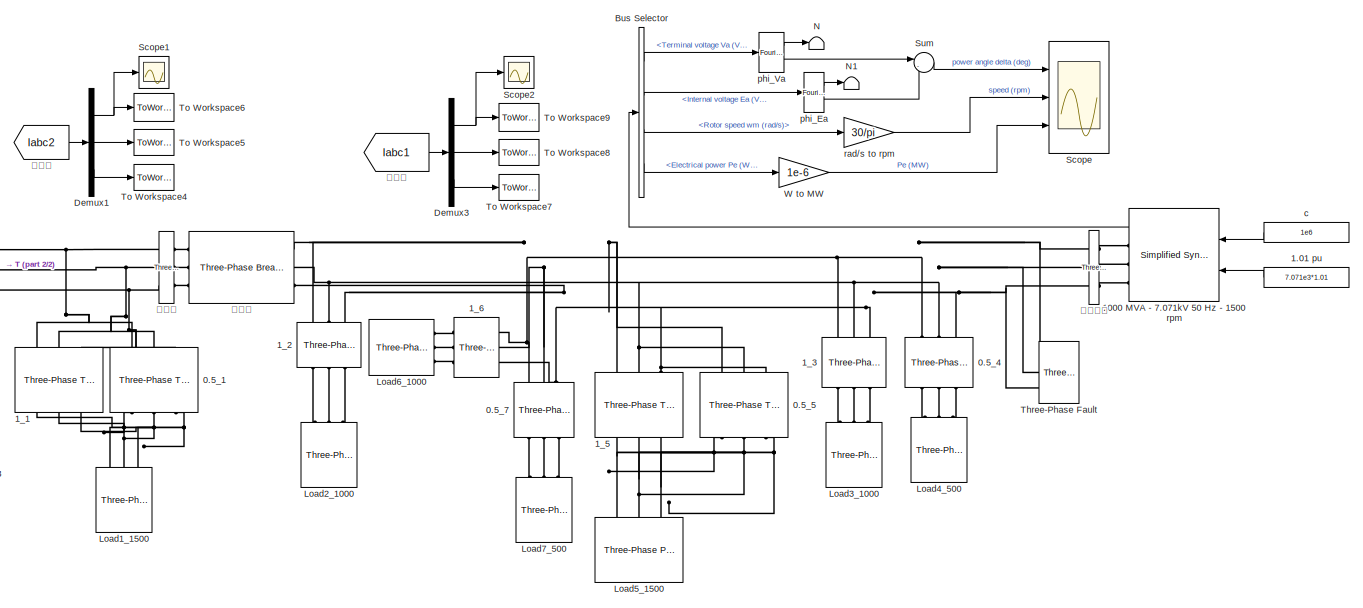
[diagram: root canvas - part 1/2, most of the canvas]
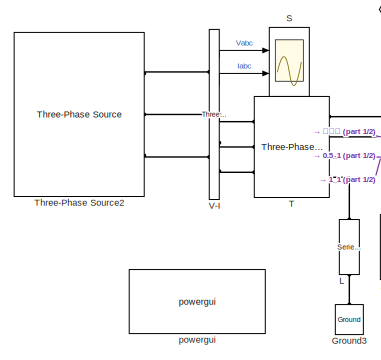
[diagram: root canvas - part 2/2, middle left region]
MODEL slx_4d53f380dfcf
KIND model
CONFIG AbsTol = auto
CONFIG EnableMultiTasking = on
CONFIG FixedStep = auto
CONFIG MaxStep = 1e-4
CONFIG MinStep = auto
CONFIG RelTol = 1e-3
CONFIG SampleTimeConstraint = Unconstrained
CONFIG Solver = ode3
CONFIG SolverName = ode3
CONFIG StartTime = 0.0
CONFIG StopTime = 7
BLOCK [Reference] 0.5_1  REF=powerlib/Elements/Three-Phase
Transformer
(Two Windings)
  Ports = [0, 0, 0, 0, 0, 3, 3]
  SourceBlock = powerlib/Elements/Three-Phase\nTransformer\n(Two Windings)
  SourceProductBaseCode = PS
  SourceProductName = Simscape Power Systems
  SourceType = Three-Phase Transformer (Two Windings)
BLOCK [Reference] 0.5_4  REF=powerlib/Elements/Three-Phase
Transformer
(Two Windings)
  Ports = [0, 0, 0, 0, 0, 3, 3]
  SourceBlock = powerlib/Elements/Three-Phase\nTransformer\n(Two Windings)
  SourceProductBaseCode = PS
  SourceProductName = Simscape Power Systems
  SourceType = Three-Phase Transformer (Two Windings)
BLOCK [Reference] 0.5_5  REF=powerlib/Elements/Three-Phase
Transformer
(Two Windings)
  Ports = [0, 0, 0, 0, 0, 3, 3]
  SourceBlock = powerlib/Elements/Three-Phase\nTransformer\n(Two Windings)
  SourceProductBaseCode = PS
  SourceProductName = Simscape Power Systems
  SourceType = Three-Phase Transformer (Two Windings)
BLOCK [Reference] 0.5_7  REF=powerlib/Elements/Three-Phase
Transformer
(Two Windings)
  Ports = [0, 0, 0, 0, 0, 3, 3]
  SourceBlock = powerlib/Elements/Three-Phase\nTransformer\n(Two Windings)
  SourceProductBaseCode = PS
  SourceProductName = Simscape Power Systems
  SourceType = Three-Phase Transformer (Two Windings)
BLOCK [Constant] 1.01 pu
  Value = 7.071e3*1.01
BLOCK [Reference] 1000 MVA - 7.071kV 50 Hz - 1500 rpm  REF=powerlib/Machines/Simplified Synchronous
Machine SI Units
  AttributesFormatString = \n
  Ports = [2, 1, 0, 0, 0, 0, 3]
  SourceBlock = powerlib/Machines/Simplified Synchronous\nMachine SI Units
  SourceProductBaseCode = PS
  SourceProductName = Simscape Power Systems
  SourceType = Simplified Synchronous Machine
BLOCK [Reference] 1_1  REF=powerlib/Elements/Three-Phase
Transformer
(Two Windings)
  Ports = [0, 0, 0, 0, 0, 3, 3]
  SourceBlock = powerlib/Elements/Three-Phase\nTransformer\n(Two Windings)
  SourceProductBaseCode = PS
  SourceProductName = Simscape Power Systems
  SourceType = Three-Phase Transformer (Two Windings)
BLOCK [Reference] 1_2  REF=powerlib/Elements/Three-Phase
Transformer
(Two Windings)
  Ports = [0, 0, 0, 0, 0, 3, 3]
  SourceBlock = powerlib/Elements/Three-Phase\nTransformer\n(Two Windings)
  SourceProductBaseCode = PS
  SourceProductName = Simscape Power Systems
  SourceType = Three-Phase Transformer (Two Windings)
BLOCK [Reference] 1_3  REF=powerlib/Elements/Three-Phase
Transformer
(Two Windings)
  Ports = [0, 0, 0, 0, 0, 3, 3]
  SourceBlock = powerlib/Elements/Three-Phase\nTransformer\n(Two Windings)
  SourceProductBaseCode = PS
  SourceProductName = Simscape Power Systems
  SourceType = Three-Phase Transformer (Two Windings)
BLOCK [Reference] 1_5  REF=powerlib/Elements/Three-Phase
Transformer
(Two Windings)
  Ports = [0, 0, 0, 0, 0, 3, 3]
  SourceBlock = powerlib/Elements/Three-Phase\nTransformer\n(Two Windings)
  SourceProductBaseCode = PS
  SourceProductName = Simscape Power Systems
  SourceType = Three-Phase Transformer (Two Windings)
BLOCK [Reference] 1_6  REF=powerlib/Elements/Three-Phase
Transformer
(Two Windings)
  Ports = [0, 0, 0, 0, 0, 3, 3]
  SourceBlock = powerlib/Elements/Three-Phase\nTransformer\n(Two Windings)
  SourceProductBaseCode = PS
  SourceProductName = Simscape Power Systems
  SourceType = Three-Phase Transformer (Two Windings)
BLOCK [BusSelector] Bus Selector
  OutputAsBus = off
  OutputSignals = Terminal voltage Va (V),Internal voltage Ea (V),Rotor speed wm (rad/s),Electrical power Pe (W)
  Ports = [1, 4]
BLOCK [Demux] Demux1
  DisplayOption = bar
  Outputs = 3
  Ports = [1, 3]
BLOCK [Demux] Demux3
  DisplayOption = bar
  Outputs = 3
  Ports = [1, 3]
BLOCK [Reference] Ground3  REF=powerlib/Elements/Ground
  Ports = [0, 0, 0, 0, 0, 1]
  SourceBlock = powerlib/Elements/Ground
  SourceProductBaseCode = PS
  SourceProductName = Simscape Power Systems
  SourceType = Ground
BLOCK [Reference] L  REF=powerlib/Elements/Series RLC Branch
  Ports = [0, 0, 0, 0, 0, 1, 1]
  SourceBlock = powerlib/Elements/Series RLC Branch
  SourceProductBaseCode = PS
  SourceProductName = Simscape Power Systems
  SourceType = Series RLC Branch
BLOCK [Reference] Load1_1500  REF=powerlib/Elements/Three-Phase
Parallel RLC Load
  AttributesFormatString = \n
  Ports = [0, 0, 0, 0, 0, 3]
  SourceBlock = powerlib/Elements/Three-Phase\nParallel RLC Load
  SourceProductBaseCode = PS
  SourceProductName = Simscape Power Systems
  SourceType = Three-Phase Parallel RLC Load
BLOCK [Reference] Load2_1000  REF=powerlib/Elements/Three-Phase
Parallel RLC Load
  AttributesFormatString = \n
  Ports = [0, 0, 0, 0, 0, 3]
  SourceBlock = powerlib/Elements/Three-Phase\nParallel RLC Load
  SourceProductBaseCode = PS
  SourceProductName = Simscape Power Systems
  SourceType = Three-Phase Parallel RLC Load
BLOCK [Reference] Load3_1000  REF=powerlib/Elements/Three-Phase
Parallel RLC Load
  AttributesFormatString = \n
  Ports = [0, 0, 0, 0, 0, 3]
  SourceBlock = powerlib/Elements/Three-Phase\nParallel RLC Load
  SourceProductBaseCode = PS
  SourceProductName = Simscape Power Systems
  SourceType = Three-Phase Parallel RLC Load
BLOCK [Reference] Load4_500  REF=powerlib/Elements/Three-Phase
Parallel RLC Load
  AttributesFormatString = \n
  Ports = [0, 0, 0, 0, 0, 3]
  SourceBlock = powerlib/Elements/Three-Phase\nParallel RLC Load
  SourceProductBaseCode = PS
  SourceProductName = Simscape Power Systems
  SourceType = Three-Phase Parallel RLC Load
BLOCK [Reference] Load5_1500  REF=powerlib/Elements/Three-Phase
Parallel RLC Load
  AttributesFormatString = \n
  Ports = [0, 0, 0, 0, 0, 3]
  SourceBlock = powerlib/Elements/Three-Phase\nParallel RLC Load
  SourceProductBaseCode = PS
  SourceProductName = Simscape Power Systems
  SourceType = Three-Phase Parallel RLC Load
BLOCK [Reference] Load6_1000  REF=powerlib/Elements/Three-Phase
Parallel RLC Load
  AttributesFormatString = \n
  Ports = [0, 0, 0, 0, 0, 3]
  SourceBlock = powerlib/Elements/Three-Phase\nParallel RLC Load
  SourceProductBaseCode = PS
  SourceProductName = Simscape Power Systems
  SourceType = Three-Phase Parallel RLC Load
BLOCK [Reference] Load7_500  REF=powerlib/Elements/Three-Phase
Parallel RLC Load
  AttributesFormatString = \n
  Ports = [0, 0, 0, 0, 0, 3]
  SourceBlock = powerlib/Elements/Three-Phase\nParallel RLC Load
  SourceProductBaseCode = PS
  SourceProductName = Simscape Power Systems
  SourceType = Three-Phase Parallel RLC Load
BLOCK [Terminator] N
BLOCK [Terminator] N1
BLOCK [Scope] S
  NumInputPorts = 2
  Ports = [2]
  ScopeSpecificationString = Simulink.scopes.TimeScopeBlockCfg('CurrentConfiguration', extmgr.ConfigurationSet(extmgr.Configuration('Core','General UI',true),extmgr.Configuration('Core','Source UI',true),extmgr.Configuration('Sources','WiredSimulink',true,'DataLoggingVariableName','ScopeData1','DataLoggingSaveFormat','Array','DataLoggingDecimation','1','DataLoggingDecimateData',true),extmgr.Configuration('Visuals','Time Domai...<+2313ch>
BLOCK [Scope] Scope
  NumInputPorts = 3
  Ports = [3]
  ScopeSpecificationString = Simulink.scopes.TimeScopeBlockCfg('CurrentConfiguration', extmgr.ConfigurationSet(extmgr.Configuration('Core','General UI',true),extmgr.Configuration('Core','Source UI',true),extmgr.Configuration('Sources','WiredSimulink',true,'DataLogging',true,'DataLoggingVariableName','ScopeData2','DataLoggingSaveFormat','Structure','DataLoggingDecimation','1','DataLoggingDecimateData',true),extmgr.Configuratio...<+3058ch>
BLOCK [Scope] Scope1
  NumInputPorts = 1
  Ports = [1]
  ScopeSpecificationString = Simulink.scopes.TimeScopeBlockCfg('CurrentConfiguration', extmgr.ConfigurationSet(extmgr.Configuration('Core','General UI',true),extmgr.Configuration('Core','Source UI',true),extmgr.Configuration('Sources','WiredSimulink',true,'DataLoggingVariableName','ScopeData3'),extmgr.Configuration('Visuals','Time Domain',true,'SerializedDisplays',{struct('MinYLimReal','-1100.29967','MaxYLimReal','549.33179',...<+1387ch>
BLOCK [Scope] Scope2
  NumInputPorts = 1
  Ports = [1]
  ScopeSpecificationString = Simulink.scopes.TimeScopeBlockCfg('CurrentConfiguration', extmgr.ConfigurationSet(extmgr.Configuration('Core','General UI',true),extmgr.Configuration('Core','Source UI',true),extmgr.Configuration('Sources','WiredSimulink',true),extmgr.Configuration('Visuals','Time Domain',true,'SerializedDisplays',{struct('MinYLimReal','-478.10552','MaxYLimReal','708.22388','YLabelReal','','MinYLimMag',' 0.00000',...<+1342ch>
BLOCK [Sum] Sum
  IconShape = round
  Inputs = |-+
  Ports = [2, 1]
BLOCK [Reference] T  REF=powerlib/Elements/Three-Phase
Transformer
(Two Windings)
  Ports = [0, 0, 0, 0, 0, 3, 4]
  SourceBlock = powerlib/Elements/Three-Phase\nTransformer\n(Two Windings)
  SourceProductBaseCode = PS
  SourceProductName = Simscape Power Systems
  SourceType = Three-Phase Transformer (Two Windings)
BLOCK [Reference] Three-Phase Fault  REF=powerlib/Elements/Three-Phase Fault
  Ports = [0, 0, 0, 0, 0, 3]
  SourceBlock = powerlib/Elements/Three-Phase Fault
  SourceProductBaseCode = PS
  SourceProductName = Simscape Power Systems
  SourceType = Three-Phase Fault
BLOCK [Reference] Three-Phase Source2  REF=powerlib/Electrical
Sources/Three-Phase Source
  Ports = [0, 0, 0, 0, 0, 0, 3]
  SourceBlock = powerlib/Electrical\nSources/Three-Phase Source
  SourceProductBaseCode = PS
  SourceProductName = Simscape Power Systems
  SourceType = Three-Phase Source
BLOCK [ToWorkspace] To Workspace4
  FixptAsFi = on
  MaxDataPoints = inf
  Ports = [1]
  SampleTime = -1
  Save2DSignal = 3-D array (concatenate along third dimension)
  SaveFormat = Timeseries
  VariableName = Ic2
BLOCK [ToWorkspace] To Workspace5
  FixptAsFi = on
  MaxDataPoints = inf
  Ports = [1]
  SampleTime = -1
  Save2DSignal = 3-D array (concatenate along third dimension)
  SaveFormat = Timeseries
  VariableName = Ib2
BLOCK [ToWorkspace] To Workspace6
  FixptAsFi = on
  MaxDataPoints = inf
  Ports = [1]
  SampleTime = -1
  Save2DSignal = 3-D array (concatenate along third dimension)
  SaveFormat = Timeseries
  VariableName = Ia2
BLOCK [ToWorkspace] To Workspace7
  FixptAsFi = on
  MaxDataPoints = inf
  Ports = [1]
  SampleTime = -1
  Save2DSignal = 3-D array (concatenate along third dimension)
  SaveFormat = Timeseries
  VariableName = Ic1
BLOCK [ToWorkspace] To Workspace8
  FixptAsFi = on
  MaxDataPoints = inf
  Ports = [1]
  SampleTime = -1
  Save2DSignal = 3-D array (concatenate along third dimension)
  SaveFormat = Timeseries
  VariableName = Ib1
BLOCK [ToWorkspace] To Workspace9
  FixptAsFi = on
  MaxDataPoints = inf
  Ports = [1]
  SampleTime = -1
  Save2DSignal = 3-D array (concatenate along third dimension)
  SaveFormat = Timeseries
  VariableName = Ia1
BLOCK [Reference] V-I  REF=powerlib/Measurements/Three-Phase
V-I Measurement
  Ports = [0, 2, 0, 0, 0, 3, 3]
  SourceBlock = powerlib/Measurements/Three-Phase\nV-I Measurement
  SourceProductBaseCode = PS
  SourceProductName = Simscape Power Systems
  SourceType = Three-Phase VI Measurement
BLOCK [Gain] W to MW
  Gain = 1e-6
BLOCK [Constant] c
  Value = 1e6
BLOCK [Reference] phi_Ea  REF=powerlib_meascontrol/Measurements/Fourier
  Ports = [1, 2]
  SourceBlock = powerlib_meascontrol/Measurements/Fourier
  SourceProductBaseCode = PS
  SourceProductName = Simscape Power Systems
  SourceType = Fourier
BLOCK [Reference] phi_Va  REF=powerlib_meascontrol/Measurements/Fourier
  Ports = [1, 2]
  SourceBlock = powerlib_meascontrol/Measurements/Fourier
  SourceProductBaseCode = PS
  SourceProductName = Simscape Power Systems
  SourceType = Fourier
BLOCK [Reference] powergui  REF=powerlib/powergui
  Ports = []
  Priority = 1
  SourceBlock = powerlib/powergui
  SourceProductBaseCode = PS
  SourceProductName = Simscape Power Systems
  SourceType = PSB option menu block
BLOCK [Gain] rad//s to rpm
  Gain = 30/pi
BLOCK [From] 发电侧
  GotoTag = Iabc2
  TagVisibility = global
BLOCK [Reference] 发电机侧  REF=powerlib/Measurements/Three-Phase
V-I Measurement
  Ports = [0, 0, 0, 0, 0, 3, 3]
  SourceBlock = powerlib/Measurements/Three-Phase\nV-I Measurement
  SourceProductBaseCode = PS
  SourceProductName = Simscape Power Systems
  SourceType = Three-Phase VI Measurement
BLOCK [Reference] 并网点  REF=powerlib/Elements/Three-Phase Breaker
  Ports = [0, 0, 0, 0, 0, 3, 3]
  SourceBlock = powerlib/Elements/Three-Phase Breaker
  SourceProductBaseCode = PS
  SourceProductName = Simscape Power Systems
  SourceType = Three-Phase Breaker
BLOCK [Reference] 电网侧  REF=powerlib/Measurements/Three-Phase
V-I Measurement
  Ports = [0, 0, 0, 0, 0, 3, 3]
  SourceBlock = powerlib/Measurements/Three-Phase\nV-I Measurement
  SourceProductBaseCode = PS
  SourceProductName = Simscape Power Systems
  SourceType = Three-Phase VI Measurement
BLOCK [From] 电网侧 
  GotoTag = Iabc1
  TagVisibility = global
LINE 1.01 pu:1 -> 1000 MVA - 7.071kV 50 Hz - 1500 rpm:2
LINE 1000 MVA - 7.071kV 50 Hz - 1500 rpm:1 -> Bus Selector:1
LINE Bus Selector:1 -> phi_Va:1
LINE Bus Selector:2 -> phi_Ea:1
LINE Bus Selector:3 -> rad//s to rpm:1
LINE Bus Selector:4 -> W to MW:1
NET Demux1:1 -> Scope1:1, To Workspace6:1
LINE Demux1:2 -> To Workspace5:1
LINE Demux1:3 -> To Workspace4:1
NET Demux3:1 -> Scope2:1, To Workspace9:1
LINE Demux3:2 -> To Workspace8:1
LINE Demux3:3 -> To Workspace7:1
LINE Sum:1 -> Scope:1
LINE V-I:1 -> S:1
LINE V-I:2 -> S:2
LINE W to MW:1 -> Scope:3
LINE c:1 -> 1000 MVA - 7.071kV 50 Hz - 1500 rpm:1
LINE phi_Ea:1 -> N1:1
LINE phi_Ea:2 -> Sum:2
LINE phi_Va:1 -> N:1
LINE phi_Va:2 -> Sum:1
LINE rad//s to rpm:1 -> Scope:2
LINE 发电侧:1 -> Demux1:1
LINE 电网侧 :1 -> Demux3:1
PNET net1: 0.5_1:LConn1 -- 1_1:LConn1 -- T:RConn1 -- 电网侧:LConn1
PNET net2: 0.5_1:LConn2 -- 1_1:LConn2 -- T:RConn2 -- 电网侧:LConn2
PNET net3: 0.5_1:LConn3 -- 1_1:LConn3 -- T:RConn3 -- 电网侧:LConn3
PNET net4: 0.5_1:RConn1 -- 1_1:RConn1 -- Load1_1500:LConn1
PNET net5: 0.5_1:RConn2 -- 1_1:RConn2 -- Load1_1500:LConn2
PNET net6: 0.5_1:RConn3 -- 1_1:RConn3 -- Load1_1500:LConn3
PNET net7: 0.5_4:LConn1 -- 0.5_5:LConn1 -- 0.5_7:LConn1 -- 1_2:LConn1 -- 1_3:LConn1 -- 1_5:LConn1 -- 1_6:LConn1 -- Three-Phase Fault:LConn1 -- 发电机侧:LConn1 -- 并网点:RConn1
PNET net8: 0.5_4:LConn2 -- 0.5_5:LConn2 -- 0.5_7:LConn2 -- 1_2:LConn2 -- 1_3:LConn2 -- 1_5:LConn2 -- 1_6:LConn2 -- Three-Phase Fault:LConn2 -- 发电机侧:LConn2 -- 并网点:RConn2
PNET net9: 0.5_4:LConn3 -- 0.5_5:LConn3 -- 0.5_7:LConn3 -- 1_2:LConn3 -- 1_3:LConn3 -- 1_5:LConn3 -- 1_6:LConn3 -- Three-Phase Fault:LConn3 -- 发电机侧:LConn3 -- 并网点:RConn3
PLINE 0.5_4:RConn1 -- Load4_500:LConn1
PLINE 0.5_4:RConn2 -- Load4_500:LConn2
PLINE 0.5_4:RConn3 -- Load4_500:LConn3
PNET net10: 0.5_5:RConn1 -- 1_5:RConn1 -- Load5_1500:LConn1
PNET net11: 0.5_5:RConn2 -- 1_5:RConn2 -- Load5_1500:LConn2
PNET net12: 0.5_5:RConn3 -- 1_5:RConn3 -- Load5_1500:LConn3
PLINE 0.5_7:RConn1 -- Load7_500:LConn1
PLINE 0.5_7:RConn2 -- Load7_500:LConn2
PLINE 0.5_7:RConn3 -- Load7_500:LConn3
PLINE 1000 MVA - 7.071kV 50 Hz - 1500 rpm:RConn1 -- 发电机侧:RConn1
PLINE 1000 MVA - 7.071kV 50 Hz - 1500 rpm:RConn2 -- 发电机侧:RConn2
PLINE 1000 MVA - 7.071kV 50 Hz - 1500 rpm:RConn3 -- 发电机侧:RConn3
PLINE 1_2:RConn1 -- Load2_1000:LConn1
PLINE 1_2:RConn2 -- Load2_1000:LConn2
PLINE 1_2:RConn3 -- Load2_1000:LConn3
PLINE 1_3:RConn1 -- Load3_1000:LConn1
PLINE 1_3:RConn2 -- Load3_1000:LConn2
PLINE 1_3:RConn3 -- Load3_1000:LConn3
PLINE 1_6:RConn1 -- Load6_1000:LConn1
PLINE 1_6:RConn2 -- Load6_1000:LConn2
PLINE 1_6:RConn3 -- Load6_1000:LConn3
PLINE Ground3:LConn1 -- L:LConn1
PLINE L:RConn1 -- T:RConn4
PLINE T:LConn1 -- V-I:RConn1
PLINE T:LConn2 -- V-I:RConn2
PLINE T:LConn3 -- V-I:RConn3
PLINE Three-Phase Source2:RConn1 -- V-I:LConn1
PLINE Three-Phase Source2:RConn2 -- V-I:LConn2
PLINE Three-Phase Source2:RConn3 -- V-I:LConn3
PLINE 并网点:LConn1 -- 电网侧:RConn1
PLINE 并网点:LConn2 -- 电网侧:RConn2
PLINE 并网点:LConn3 -- 电网侧:RConn3
note: NET lines group one-source signal fan-out (src -> all destinations, sorted); 1:1 wires keep LINE; PNET lines group multi-terminal physical nets as a canonical sorted terminal list (undirected conserving connections); 2-terminal nets keep the pairwise PLINE form
